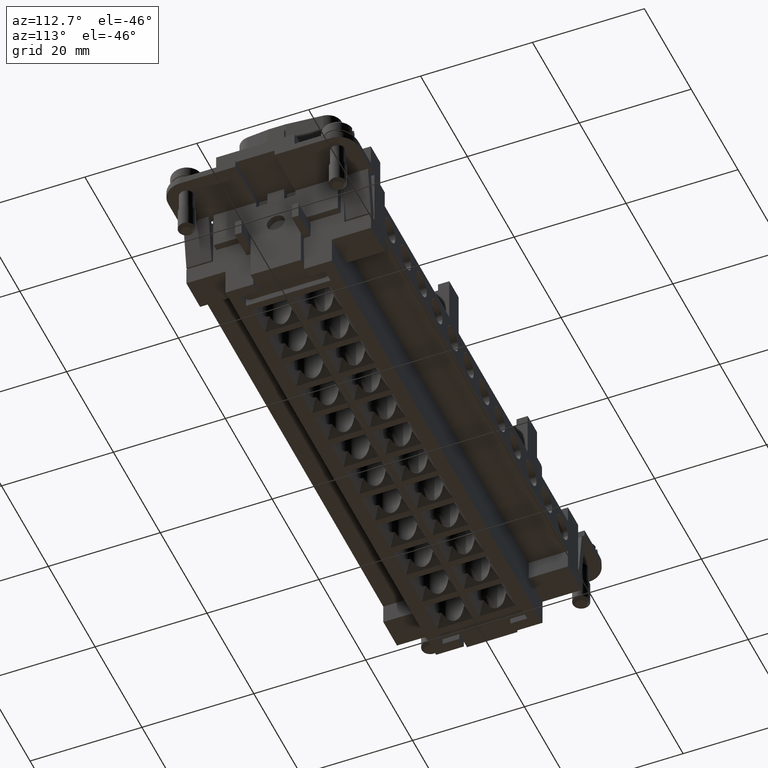
[diagram: clean part render]
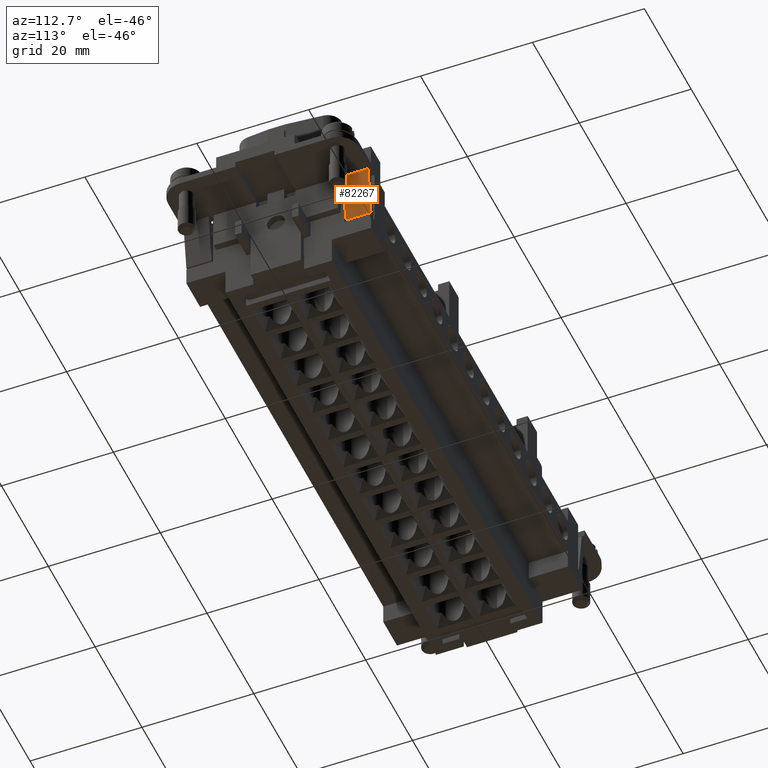
[diagram: same view with one face highlighted and labeled with its STEP entity id]
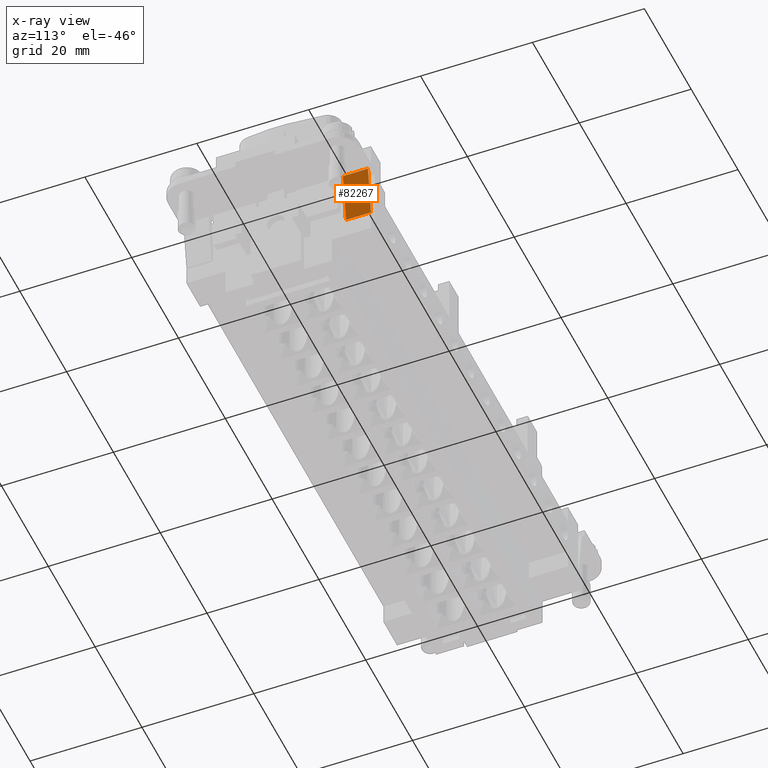
[diagram: x-ray of the same camera — body ghosted, the highlighted face saturated]
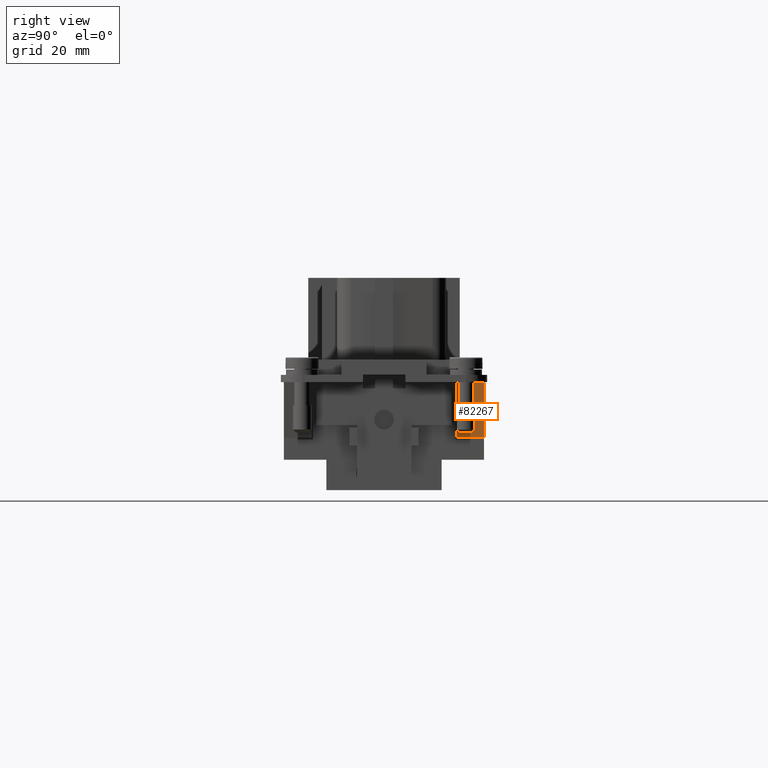
[diagram: same view with one face highlighted and labeled with its STEP entity id]
A machine part, auxiliary view. The second image highlights one B-rep face of the part: STEP entity #82267.
The next image is the same camera in x-ray: the body ghosted, the highlighted face saturated — about 0% of this face is hidden behind the body in this view.
A second angle (right view) of the same face is appended — the face is thin or edge-on in the first view.
In plain terms, the highlighted face is a freeform B-spline surface patch.
Its self-contained STEP definition (entity closure, byte-faithful):
#82204=CARTESIAN_POINT('',(45.003454170168347,12.0,8.632992278847922));
#82205=VERTEX_POINT('',#82204);
#82220=CARTESIAN_POINT('',(45.003454170168347,16.500000000000000,8.632992278847922));
#82221=VERTEX_POINT('',#82220);
#82228=CARTESIAN_POINT('',(45.003454170168347,16.500000000000000,8.632992278847922));
#82229=DIRECTION('',(0.0,-1.0,0.0));
#82230=VECTOR('',#82229,4.500000000000000);
#82231=LINE('',#82228,#82230);
#82232=EDGE_CURVE('',#82221,#82205,#82231,.T.);
#82237=CARTESIAN_POINT('',(46.291793087022334,11.999999999999998,17.800000000000004));
#82238=CARTESIAN_POINT('',(45.003454170168347,11.999999999999998,8.632992278847921));
#82239=CARTESIAN_POINT('',(46.291793087022334,16.500000000000004,17.800000000000004));
#82240=CARTESIAN_POINT('',(45.003454170168347,16.500000000000000,8.632992278847922));
#82241=B_SPLINE_SURFACE_WITH_KNOTS('',1,1,((#82237,#82239),(#82238,#82240)),.UNSPECIFIED.,.F.,.F.,.U.,(2,2),(2,2),(0.0,9.257097154310438),(0.0,4.500000000000005),.UNSPECIFIED.);
#82242=CARTESIAN_POINT('',(46.291793087022334,12.0,17.800000000000004));
#82243=VERTEX_POINT('',#82242);
#82244=CARTESIAN_POINT('',(45.003454170168347,12.0,8.632992278847922));
#82245=DIRECTION('',(0.139173100960066,0.0,0.990268068741570));
#82246=VECTOR('',#82245,9.257097154310436);
#82247=LINE('',#82244,#82246);
#82248=EDGE_CURVE('',#82205,#82243,#82247,.T.);
#82249=ORIENTED_EDGE('',*,*,#82248,.F.);
#82250=ORIENTED_EDGE('',*,*,#82232,.F.);
#82251=CARTESIAN_POINT('',(46.291793087022334,16.500000000000000,17.800000000000004));
#82252=VERTEX_POINT('',#82251);
#82253=CARTESIAN_POINT('',(46.291793087022334,16.500000000000000,17.800000000000004));
#82254=DIRECTION('',(-0.139173100960066,0.0,-0.990268068741570));
#82255=VECTOR('',#82254,9.257097154310436);
#82256=LINE('',#82253,#82255);
#82257=EDGE_CURVE('',#82252,#82221,#82256,.T.);
#82258=ORIENTED_EDGE('',*,*,#82257,.F.);
#82259=CARTESIAN_POINT('',(46.291793087022334,12.0,17.800000000000004));
#82260=DIRECTION('',(0.0,1.0,0.0));
#82261=VECTOR('',#82260,4.500000000000000);
#82262=LINE('',#82259,#82261);
#82263=EDGE_CURVE('',#82243,#82252,#82262,.T.);
#82264=ORIENTED_EDGE('',*,*,#82263,.F.);
#82265=EDGE_LOOP('',(#82249,#82250,#82258,#82264));
#82266=FACE_OUTER_BOUND('',#82265,.T.);
#82267=ADVANCED_FACE('',(#82266),#82241,.T.);